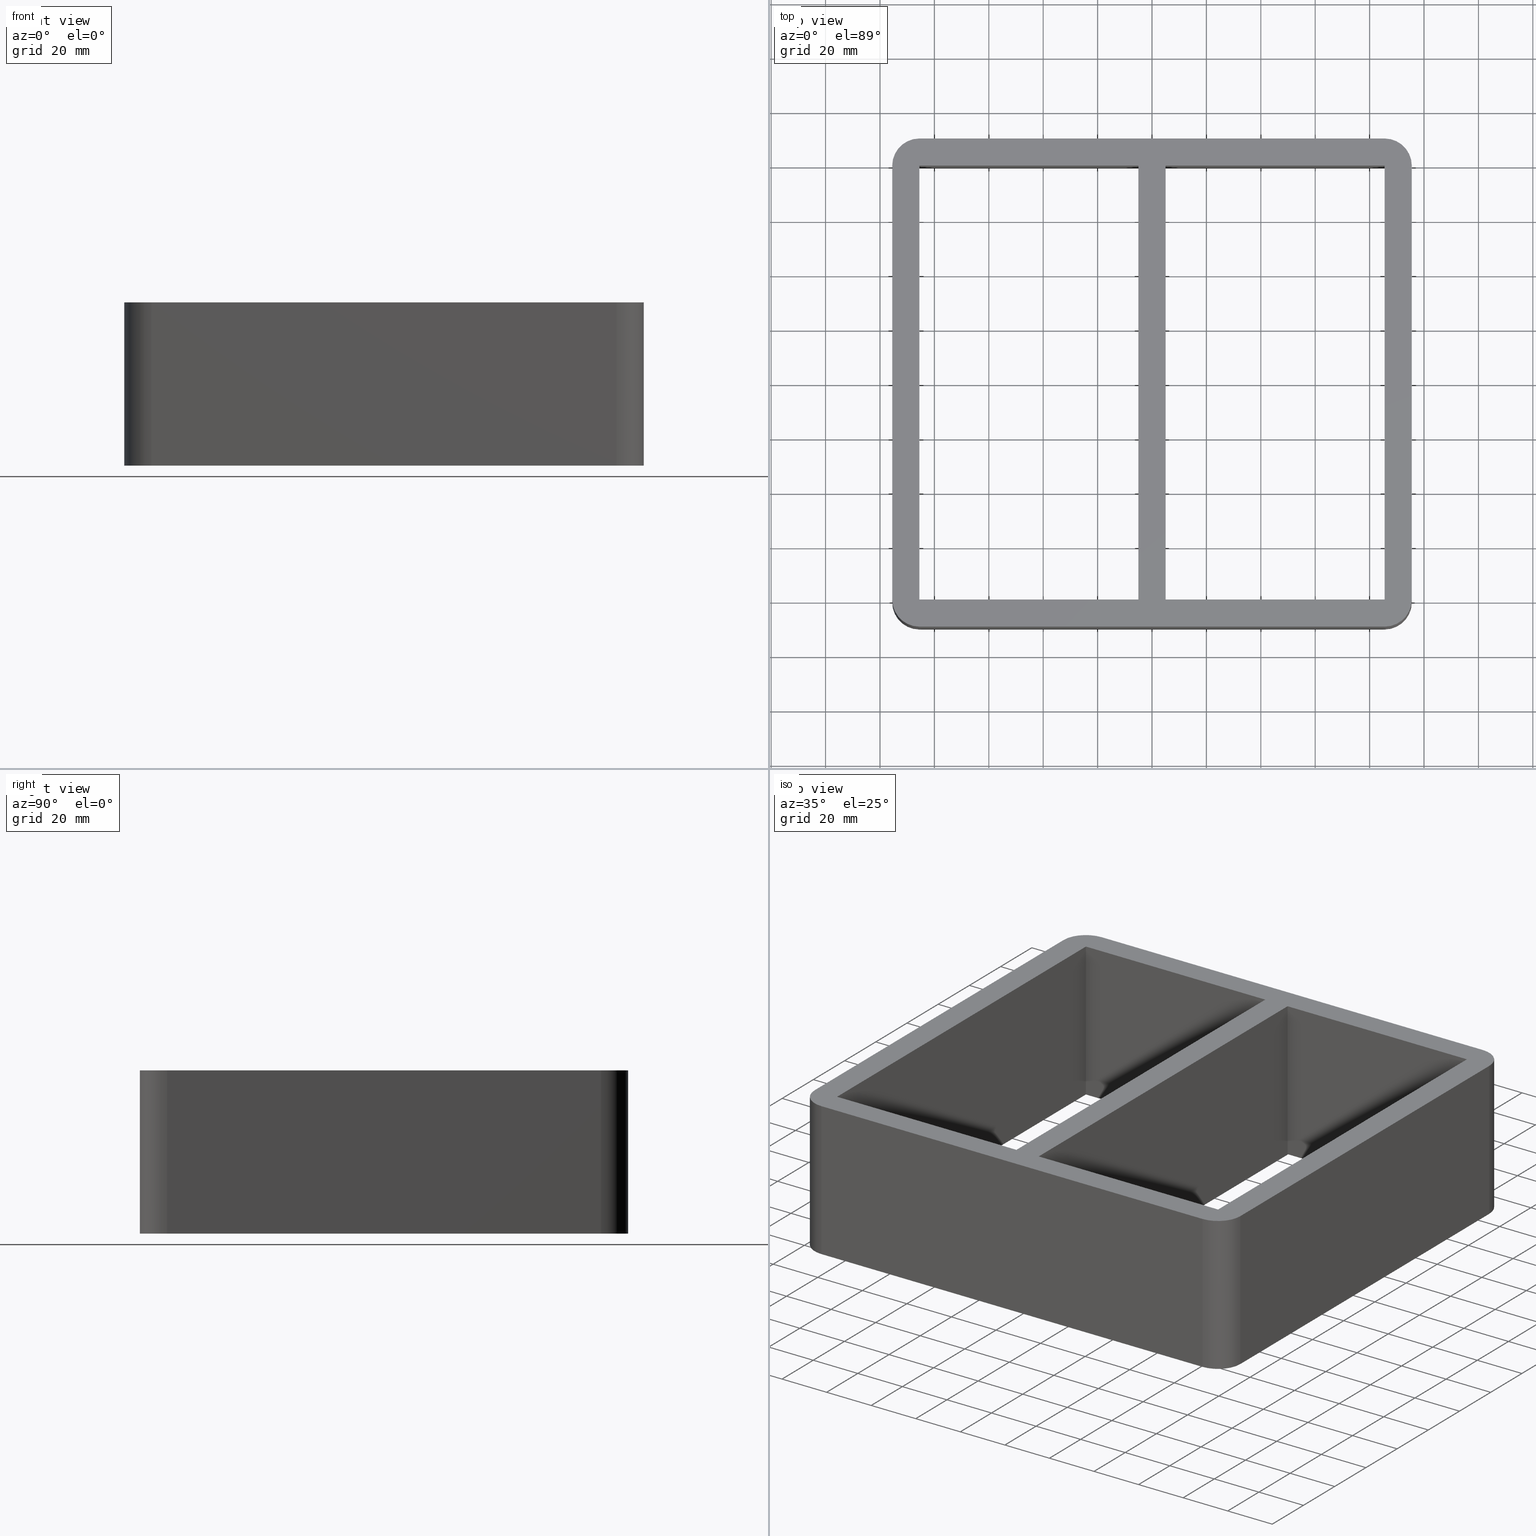
[diagram: canonical four-view strip — front | top / right | iso, engineering-drawing reading convention]
A machine part, canonical four-view strip (front | top / right | iso — engineering-drawing reading convention). The complete STEP part file that produces these views, byte-faithful:
ISO-10303-21;
HEADER;
/* Generated by software containing ST-Developer
 * from STEP Tools, Inc. (www.steptools.com) 
 */

FILE_DESCRIPTION(
/* description */ (''),
/* implementation_level */ '2;1');

FILE_NAME(
/* name */ 
'C:\\Users\\se-milkar\\OneDrive - Roxtec international AB\\Desktop\\S 
80\\Step\\S804X2.stp',
/* time_stamp */ '2024-09-03T15:06:05+02:00',
/* author */ ('ENTER YOUR USERNAME'),
/* organization */ (''),
/* preprocessor_version */ 'ST-DEVELOPER v18.1',
/* originating_system */ 'Autodesk Inventor 2021',
/* authorisation */ '');

FILE_SCHEMA (('AUTOMOTIVE_DESIGN { 1 0 10303 214 3 1 1 }'));
ENDSEC;

DATA;
#10=MECHANICAL_DESIGN_GEOMETRIC_PRESENTATION_REPRESENTATION('',(#13),#601);
#11=SHAPE_REPRESENTATION_RELATIONSHIP('SRR','None',#608,#12);
#12=ADVANCED_BREP_SHAPE_REPRESENTATION('',(#14),#600);
#13=STYLED_ITEM('',(#617),#14);
#14=MANIFOLD_SOLID_BREP('Solid1',#359);
#15=FACE_BOUND('',#60,.T.);
#16=FACE_BOUND('',#61,.T.);
#17=FACE_BOUND('',#69,.T.);
#18=FACE_BOUND('',#70,.T.);
#19=CIRCLE('',#388,10.);
#20=CIRCLE('',#389,10.);
#21=CIRCLE('',#392,10.);
#22=CIRCLE('',#393,10.);
#23=CIRCLE('',#394,10.);
#24=CIRCLE('',#396,10.);
#25=CIRCLE('',#399,10.);
#26=CIRCLE('',#402,10.);
#27=CYLINDRICAL_SURFACE('',#387,10.);
#28=CYLINDRICAL_SURFACE('',#395,10.);
#29=CYLINDRICAL_SURFACE('',#398,10.);
#30=CYLINDRICAL_SURFACE('',#401,10.);
#31=FACE_OUTER_BOUND('',#49,.T.);
#32=FACE_OUTER_BOUND('',#50,.T.);
#33=FACE_OUTER_BOUND('',#51,.T.);
#34=FACE_OUTER_BOUND('',#52,.T.);
#35=FACE_OUTER_BOUND('',#53,.T.);
#36=FACE_OUTER_BOUND('',#54,.T.);
#37=FACE_OUTER_BOUND('',#55,.T.);
#38=FACE_OUTER_BOUND('',#56,.T.);
#39=FACE_OUTER_BOUND('',#57,.T.);
#40=FACE_OUTER_BOUND('',#58,.T.);
#41=FACE_OUTER_BOUND('',#59,.T.);
#42=FACE_OUTER_BOUND('',#62,.T.);
#43=FACE_OUTER_BOUND('',#63,.T.);
#44=FACE_OUTER_BOUND('',#64,.T.);
#45=FACE_OUTER_BOUND('',#65,.T.);
#46=FACE_OUTER_BOUND('',#66,.T.);
#47=FACE_OUTER_BOUND('',#67,.T.);
#48=FACE_OUTER_BOUND('',#68,.T.);
#49=EDGE_LOOP('',(#231,#232,#233,#234));
#50=EDGE_LOOP('',(#235,#236,#237,#238));
#51=EDGE_LOOP('',(#239,#240,#241,#242));
#52=EDGE_LOOP('',(#243,#244,#245,#246));
#53=EDGE_LOOP('',(#247,#248,#249,#250));
#54=EDGE_LOOP('',(#251,#252,#253,#254));
#55=EDGE_LOOP('',(#255,#256,#257,#258));
#56=EDGE_LOOP('',(#259,#260,#261,#262));
#57=EDGE_LOOP('',(#263,#264,#265,#266));
#58=EDGE_LOOP('',(#267,#268,#269,#270));
#59=EDGE_LOOP('',(#271,#272,#273,#274,#275,#276,#277,#278));
#60=EDGE_LOOP('',(#279,#280,#281,#282));
#61=EDGE_LOOP('',(#283,#284,#285,#286));
#62=EDGE_LOOP('',(#287,#288,#289,#290));
#63=EDGE_LOOP('',(#291,#292,#293,#294));
#64=EDGE_LOOP('',(#295,#296,#297,#298));
#65=EDGE_LOOP('',(#299,#300,#301,#302));
#66=EDGE_LOOP('',(#303,#304,#305,#306));
#67=EDGE_LOOP('',(#307,#308,#309,#310));
#68=EDGE_LOOP('',(#311,#312,#313,#314,#315,#316,#317,#318));
#69=EDGE_LOOP('',(#319,#320,#321,#322));
#70=EDGE_LOOP('',(#323,#324,#325,#326));
#71=LINE('',#503,#111);
#72=LINE('',#505,#112);
#73=LINE('',#507,#113);
#74=LINE('',#508,#114);
#75=LINE('',#511,#115);
#76=LINE('',#513,#116);
#77=LINE('',#514,#117);
#78=LINE('',#517,#118);
#79=LINE('',#519,#119);
#80=LINE('',#520,#120);
#81=LINE('',#522,#121);
#82=LINE('',#523,#122);
#83=LINE('',#527,#123);
#84=LINE('',#529,#124);
#85=LINE('',#531,#125);
#86=LINE('',#532,#126);
#87=LINE('',#535,#127);
#88=LINE('',#537,#128);
#89=LINE('',#538,#129);
#90=LINE('',#541,#130);
#91=LINE('',#543,#131);
#92=LINE('',#544,#132);
#93=LINE('',#546,#133);
#94=LINE('',#547,#134);
#95=LINE('',#553,#135);
#96=LINE('',#556,#136);
#97=LINE('',#559,#137);
#98=LINE('',#561,#138);
#99=LINE('',#562,#139);
#100=LINE('',#565,#140);
#101=LINE('',#569,#141);
#102=LINE('',#573,#142);
#103=LINE('',#577,#143);
#104=LINE('',#581,#144);
#105=LINE('',#582,#145);
#106=LINE('',#585,#146);
#107=LINE('',#589,#147);
#108=LINE('',#590,#148);
#109=LINE('',#593,#149);
#110=LINE('',#596,#150);
#111=VECTOR('',#409,10.);
#112=VECTOR('',#410,10.);
#113=VECTOR('',#411,10.);
#114=VECTOR('',#412,10.);
#115=VECTOR('',#415,10.);
#116=VECTOR('',#416,10.);
#117=VECTOR('',#417,10.);
#118=VECTOR('',#420,10.);
#119=VECTOR('',#421,10.);
#120=VECTOR('',#422,10.);
#121=VECTOR('',#425,10.);
#122=VECTOR('',#426,10.);
#123=VECTOR('',#429,10.);
#124=VECTOR('',#430,10.);
#125=VECTOR('',#431,10.);
#126=VECTOR('',#432,10.);
#127=VECTOR('',#435,10.);
#128=VECTOR('',#436,10.);
#129=VECTOR('',#437,10.);
#130=VECTOR('',#440,10.);
#131=VECTOR('',#441,10.);
#132=VECTOR('',#442,10.);
#133=VECTOR('',#445,10.);
#134=VECTOR('',#446,10.);
#135=VECTOR('',#451,10.);
#136=VECTOR('',#454,10.);
#137=VECTOR('',#457,10.);
#138=VECTOR('',#458,10.);
#139=VECTOR('',#459,10.);
#140=VECTOR('',#462,10.);
#141=VECTOR('',#465,10.);
#142=VECTOR('',#468,10.);
#143=VECTOR('',#473,10.);
#144=VECTOR('',#478,10.);
#145=VECTOR('',#479,10.);
#146=VECTOR('',#482,10.);
#147=VECTOR('',#487,10.);
#148=VECTOR('',#488,10.);
#149=VECTOR('',#491,10.);
#150=VECTOR('',#496,10.);
#151=VERTEX_POINT('',#501);
#152=VERTEX_POINT('',#502);
#153=VERTEX_POINT('',#504);
#154=VERTEX_POINT('',#506);
#155=VERTEX_POINT('',#510);
#156=VERTEX_POINT('',#512);
#157=VERTEX_POINT('',#516);
#158=VERTEX_POINT('',#518);
#159=VERTEX_POINT('',#525);
#160=VERTEX_POINT('',#526);
#161=VERTEX_POINT('',#528);
#162=VERTEX_POINT('',#530);
#163=VERTEX_POINT('',#534);
#164=VERTEX_POINT('',#536);
#165=VERTEX_POINT('',#540);
#166=VERTEX_POINT('',#542);
#167=VERTEX_POINT('',#549);
#168=VERTEX_POINT('',#550);
#169=VERTEX_POINT('',#552);
#170=VERTEX_POINT('',#554);
#171=VERTEX_POINT('',#558);
#172=VERTEX_POINT('',#560);
#173=VERTEX_POINT('',#564);
#174=VERTEX_POINT('',#566);
#175=VERTEX_POINT('',#568);
#176=VERTEX_POINT('',#570);
#177=VERTEX_POINT('',#572);
#178=VERTEX_POINT('',#576);
#179=VERTEX_POINT('',#580);
#180=VERTEX_POINT('',#584);
#181=VERTEX_POINT('',#588);
#182=VERTEX_POINT('',#592);
#183=EDGE_CURVE('',#151,#152,#71,.T.);
#184=EDGE_CURVE('',#153,#151,#72,.T.);
#185=EDGE_CURVE('',#154,#153,#73,.T.);
#186=EDGE_CURVE('',#154,#152,#74,.T.);
#187=EDGE_CURVE('',#152,#155,#75,.T.);
#188=EDGE_CURVE('',#156,#154,#76,.T.);
#189=EDGE_CURVE('',#156,#155,#77,.T.);
#190=EDGE_CURVE('',#155,#157,#78,.T.);
#191=EDGE_CURVE('',#158,#156,#79,.T.);
#192=EDGE_CURVE('',#158,#157,#80,.T.);
#193=EDGE_CURVE('',#157,#151,#81,.T.);
#194=EDGE_CURVE('',#153,#158,#82,.T.);
#195=EDGE_CURVE('',#159,#160,#83,.T.);
#196=EDGE_CURVE('',#161,#159,#84,.T.);
#197=EDGE_CURVE('',#162,#161,#85,.T.);
#198=EDGE_CURVE('',#162,#160,#86,.T.);
#199=EDGE_CURVE('',#160,#163,#87,.T.);
#200=EDGE_CURVE('',#164,#162,#88,.T.);
#201=EDGE_CURVE('',#164,#163,#89,.T.);
#202=EDGE_CURVE('',#163,#165,#90,.T.);
#203=EDGE_CURVE('',#166,#164,#91,.T.);
#204=EDGE_CURVE('',#166,#165,#92,.T.);
#205=EDGE_CURVE('',#165,#159,#93,.T.);
#206=EDGE_CURVE('',#161,#166,#94,.T.);
#207=EDGE_CURVE('',#167,#168,#19,.T.);
#208=EDGE_CURVE('',#168,#169,#95,.T.);
#209=EDGE_CURVE('',#169,#170,#20,.T.);
#210=EDGE_CURVE('',#170,#167,#96,.T.);
#211=EDGE_CURVE('',#171,#168,#97,.T.);
#212=EDGE_CURVE('',#172,#171,#98,.T.);
#213=EDGE_CURVE('',#169,#172,#99,.T.);
#214=EDGE_CURVE('',#167,#173,#100,.T.);
#215=EDGE_CURVE('',#174,#173,#21,.T.);
#216=EDGE_CURVE('',#174,#175,#101,.T.);
#217=EDGE_CURVE('',#176,#175,#22,.T.);
#218=EDGE_CURVE('',#176,#177,#102,.T.);
#219=EDGE_CURVE('',#171,#177,#23,.T.);
#220=EDGE_CURVE('',#177,#178,#103,.T.);
#221=EDGE_CURVE('',#178,#172,#24,.T.);
#222=EDGE_CURVE('',#179,#176,#104,.T.);
#223=EDGE_CURVE('',#178,#179,#105,.T.);
#224=EDGE_CURVE('',#175,#180,#106,.T.);
#225=EDGE_CURVE('',#180,#179,#25,.T.);
#226=EDGE_CURVE('',#181,#174,#107,.T.);
#227=EDGE_CURVE('',#180,#181,#108,.T.);
#228=EDGE_CURVE('',#173,#182,#109,.T.);
#229=EDGE_CURVE('',#182,#181,#26,.T.);
#230=EDGE_CURVE('',#182,#170,#110,.T.);
#231=ORIENTED_EDGE('',*,*,#183,.F.);
#232=ORIENTED_EDGE('',*,*,#184,.F.);
#233=ORIENTED_EDGE('',*,*,#185,.F.);
#234=ORIENTED_EDGE('',*,*,#186,.T.);
#235=ORIENTED_EDGE('',*,*,#187,.F.);
#236=ORIENTED_EDGE('',*,*,#186,.F.);
#237=ORIENTED_EDGE('',*,*,#188,.F.);
#238=ORIENTED_EDGE('',*,*,#189,.T.);
#239=ORIENTED_EDGE('',*,*,#190,.F.);
#240=ORIENTED_EDGE('',*,*,#189,.F.);
#241=ORIENTED_EDGE('',*,*,#191,.F.);
#242=ORIENTED_EDGE('',*,*,#192,.T.);
#243=ORIENTED_EDGE('',*,*,#193,.F.);
#244=ORIENTED_EDGE('',*,*,#192,.F.);
#245=ORIENTED_EDGE('',*,*,#194,.F.);
#246=ORIENTED_EDGE('',*,*,#184,.T.);
#247=ORIENTED_EDGE('',*,*,#195,.F.);
#248=ORIENTED_EDGE('',*,*,#196,.F.);
#249=ORIENTED_EDGE('',*,*,#197,.F.);
#250=ORIENTED_EDGE('',*,*,#198,.T.);
#251=ORIENTED_EDGE('',*,*,#199,.F.);
#252=ORIENTED_EDGE('',*,*,#198,.F.);
#253=ORIENTED_EDGE('',*,*,#200,.F.);
#254=ORIENTED_EDGE('',*,*,#201,.T.);
#255=ORIENTED_EDGE('',*,*,#202,.F.);
#256=ORIENTED_EDGE('',*,*,#201,.F.);
#257=ORIENTED_EDGE('',*,*,#203,.F.);
#258=ORIENTED_EDGE('',*,*,#204,.T.);
#259=ORIENTED_EDGE('',*,*,#205,.F.);
#260=ORIENTED_EDGE('',*,*,#204,.F.);
#261=ORIENTED_EDGE('',*,*,#206,.F.);
#262=ORIENTED_EDGE('',*,*,#196,.T.);
#263=ORIENTED_EDGE('',*,*,#207,.T.);
#264=ORIENTED_EDGE('',*,*,#208,.T.);
#265=ORIENTED_EDGE('',*,*,#209,.T.);
#266=ORIENTED_EDGE('',*,*,#210,.T.);
#267=ORIENTED_EDGE('',*,*,#208,.F.);
#268=ORIENTED_EDGE('',*,*,#211,.F.);
#269=ORIENTED_EDGE('',*,*,#212,.F.);
#270=ORIENTED_EDGE('',*,*,#213,.F.);
#271=ORIENTED_EDGE('',*,*,#207,.F.);
#272=ORIENTED_EDGE('',*,*,#214,.T.);
#273=ORIENTED_EDGE('',*,*,#215,.F.);
#274=ORIENTED_EDGE('',*,*,#216,.T.);
#275=ORIENTED_EDGE('',*,*,#217,.F.);
#276=ORIENTED_EDGE('',*,*,#218,.T.);
#277=ORIENTED_EDGE('',*,*,#219,.F.);
#278=ORIENTED_EDGE('',*,*,#211,.T.);
#279=ORIENTED_EDGE('',*,*,#183,.T.);
#280=ORIENTED_EDGE('',*,*,#187,.T.);
#281=ORIENTED_EDGE('',*,*,#190,.T.);
#282=ORIENTED_EDGE('',*,*,#193,.T.);
#283=ORIENTED_EDGE('',*,*,#202,.T.);
#284=ORIENTED_EDGE('',*,*,#205,.T.);
#285=ORIENTED_EDGE('',*,*,#195,.T.);
#286=ORIENTED_EDGE('',*,*,#199,.T.);
#287=ORIENTED_EDGE('',*,*,#219,.T.);
#288=ORIENTED_EDGE('',*,*,#220,.T.);
#289=ORIENTED_EDGE('',*,*,#221,.T.);
#290=ORIENTED_EDGE('',*,*,#212,.T.);
#291=ORIENTED_EDGE('',*,*,#220,.F.);
#292=ORIENTED_EDGE('',*,*,#218,.F.);
#293=ORIENTED_EDGE('',*,*,#222,.F.);
#294=ORIENTED_EDGE('',*,*,#223,.F.);
#295=ORIENTED_EDGE('',*,*,#217,.T.);
#296=ORIENTED_EDGE('',*,*,#224,.T.);
#297=ORIENTED_EDGE('',*,*,#225,.T.);
#298=ORIENTED_EDGE('',*,*,#222,.T.);
#299=ORIENTED_EDGE('',*,*,#224,.F.);
#300=ORIENTED_EDGE('',*,*,#216,.F.);
#301=ORIENTED_EDGE('',*,*,#226,.F.);
#302=ORIENTED_EDGE('',*,*,#227,.F.);
#303=ORIENTED_EDGE('',*,*,#215,.T.);
#304=ORIENTED_EDGE('',*,*,#228,.T.);
#305=ORIENTED_EDGE('',*,*,#229,.T.);
#306=ORIENTED_EDGE('',*,*,#226,.T.);
#307=ORIENTED_EDGE('',*,*,#210,.F.);
#308=ORIENTED_EDGE('',*,*,#230,.F.);
#309=ORIENTED_EDGE('',*,*,#228,.F.);
#310=ORIENTED_EDGE('',*,*,#214,.F.);
#311=ORIENTED_EDGE('',*,*,#209,.F.);
#312=ORIENTED_EDGE('',*,*,#213,.T.);
#313=ORIENTED_EDGE('',*,*,#221,.F.);
#314=ORIENTED_EDGE('',*,*,#223,.T.);
#315=ORIENTED_EDGE('',*,*,#225,.F.);
#316=ORIENTED_EDGE('',*,*,#227,.T.);
#317=ORIENTED_EDGE('',*,*,#229,.F.);
#318=ORIENTED_EDGE('',*,*,#230,.T.);
#319=ORIENTED_EDGE('',*,*,#185,.T.);
#320=ORIENTED_EDGE('',*,*,#194,.T.);
#321=ORIENTED_EDGE('',*,*,#191,.T.);
#322=ORIENTED_EDGE('',*,*,#188,.T.);
#323=ORIENTED_EDGE('',*,*,#203,.T.);
#324=ORIENTED_EDGE('',*,*,#200,.T.);
#325=ORIENTED_EDGE('',*,*,#197,.T.);
#326=ORIENTED_EDGE('',*,*,#206,.T.);
#327=PLANE('',#379);
#328=PLANE('',#380);
#329=PLANE('',#381);
#330=PLANE('',#382);
#331=PLANE('',#383);
#332=PLANE('',#384);
#333=PLANE('',#385);
#334=PLANE('',#386);
#335=PLANE('',#390);
#336=PLANE('',#391);
#337=PLANE('',#397);
#338=PLANE('',#400);
#339=PLANE('',#403);
#340=PLANE('',#404);
#341=ADVANCED_FACE('',(#31),#327,.F.);
#342=ADVANCED_FACE('',(#32),#328,.F.);
#343=ADVANCED_FACE('',(#33),#329,.F.);
#344=ADVANCED_FACE('',(#34),#330,.F.);
#345=ADVANCED_FACE('',(#35),#331,.F.);
#346=ADVANCED_FACE('',(#36),#332,.F.);
#347=ADVANCED_FACE('',(#37),#333,.F.);
#348=ADVANCED_FACE('',(#38),#334,.F.);
#349=ADVANCED_FACE('',(#39),#27,.T.);
#350=ADVANCED_FACE('',(#40),#335,.T.);
#351=ADVANCED_FACE('',(#41,#15,#16),#336,.T.);
#352=ADVANCED_FACE('',(#42),#28,.T.);
#353=ADVANCED_FACE('',(#43),#337,.T.);
#354=ADVANCED_FACE('',(#44),#29,.T.);
#355=ADVANCED_FACE('',(#45),#338,.T.);
#356=ADVANCED_FACE('',(#46),#30,.T.);
#357=ADVANCED_FACE('',(#47),#339,.T.);
#358=ADVANCED_FACE('',(#48,#17,#18),#340,.T.);
#359=CLOSED_SHELL('',(#341,#342,#343,#344,#345,#346,#347,#348,#349,#350,
#351,#352,#353,#354,#355,#356,#357,#358));
#360=DERIVED_UNIT_ELEMENT(#362,1.);
#361=DERIVED_UNIT_ELEMENT(#603,-3.);
#362=(
MASS_UNIT()
NAMED_UNIT(*)
SI_UNIT($,.GRAM.)
);
#363=DERIVED_UNIT((#360,#361));
#364=MEASURE_REPRESENTATION_ITEM('density measure',
POSITIVE_RATIO_MEASURE(1.),#363);
#365=PROPERTY_DEFINITION_REPRESENTATION(#370,#367);
#366=PROPERTY_DEFINITION_REPRESENTATION(#371,#368);
#367=REPRESENTATION('material name',(#369),#600);
#368=REPRESENTATION('density',(#364),#600);
#369=DESCRIPTIVE_REPRESENTATION_ITEM('Generic','Generic');
#370=PROPERTY_DEFINITION('material property','material name',#610);
#371=PROPERTY_DEFINITION('material property','density of part',#610);
#372=DATE_TIME_ROLE('creation_date');
#373=APPLIED_DATE_AND_TIME_ASSIGNMENT(#374,#372,(#610));
#374=DATE_AND_TIME(#375,#376);
#375=CALENDAR_DATE(2022,17,2);
#376=LOCAL_TIME(0,0,0.,#377);
#377=COORDINATED_UNIVERSAL_TIME_OFFSET(0,0,.BEHIND.);
#378=AXIS2_PLACEMENT_3D('placement',#499,#405,#406);
#379=AXIS2_PLACEMENT_3D('',#500,#407,#408);
#380=AXIS2_PLACEMENT_3D('',#509,#413,#414);
#381=AXIS2_PLACEMENT_3D('',#515,#418,#419);
#382=AXIS2_PLACEMENT_3D('',#521,#423,#424);
#383=AXIS2_PLACEMENT_3D('',#524,#427,#428);
#384=AXIS2_PLACEMENT_3D('',#533,#433,#434);
#385=AXIS2_PLACEMENT_3D('',#539,#438,#439);
#386=AXIS2_PLACEMENT_3D('',#545,#443,#444);
#387=AXIS2_PLACEMENT_3D('',#548,#447,#448);
#388=AXIS2_PLACEMENT_3D('',#551,#449,#450);
#389=AXIS2_PLACEMENT_3D('',#555,#452,#453);
#390=AXIS2_PLACEMENT_3D('',#557,#455,#456);
#391=AXIS2_PLACEMENT_3D('',#563,#460,#461);
#392=AXIS2_PLACEMENT_3D('',#567,#463,#464);
#393=AXIS2_PLACEMENT_3D('',#571,#466,#467);
#394=AXIS2_PLACEMENT_3D('',#574,#469,#470);
#395=AXIS2_PLACEMENT_3D('',#575,#471,#472);
#396=AXIS2_PLACEMENT_3D('',#578,#474,#475);
#397=AXIS2_PLACEMENT_3D('',#579,#476,#477);
#398=AXIS2_PLACEMENT_3D('',#583,#480,#481);
#399=AXIS2_PLACEMENT_3D('',#586,#483,#484);
#400=AXIS2_PLACEMENT_3D('',#587,#485,#486);
#401=AXIS2_PLACEMENT_3D('',#591,#489,#490);
#402=AXIS2_PLACEMENT_3D('',#594,#492,#493);
#403=AXIS2_PLACEMENT_3D('',#595,#494,#495);
#404=AXIS2_PLACEMENT_3D('',#597,#497,#498);
#405=DIRECTION('axis',(0.,0.,1.));
#406=DIRECTION('refdir',(1.,0.,0.));
#407=DIRECTION('center_axis',(1.,5.56851673793182E-17,0.));
#408=DIRECTION('ref_axis',(5.56851673793182E-17,-1.,0.));
#409=DIRECTION('',(-5.56851673793182E-17,1.,0.));
#410=DIRECTION('',(0.,0.,-1.));
#411=DIRECTION('',(5.56851673793182E-17,-1.,0.));
#412=DIRECTION('',(0.,0.,-1.));
#413=DIRECTION('center_axis',(0.,1.,0.));
#414=DIRECTION('ref_axis',(1.,0.,0.));
#415=DIRECTION('',(-1.,0.,0.));
#416=DIRECTION('',(1.,0.,0.));
#417=DIRECTION('',(0.,0.,-1.));
#418=DIRECTION('center_axis',(-1.,1.35871808405536E-14,0.));
#419=DIRECTION('ref_axis',(1.35871808405536E-14,1.,0.));
#420=DIRECTION('',(-1.35871808405536E-14,-1.,0.));
#421=DIRECTION('',(1.35871808405536E-14,1.,0.));
#422=DIRECTION('',(0.,0.,-1.));
#423=DIRECTION('center_axis',(0.,-1.,0.));
#424=DIRECTION('ref_axis',(-1.,0.,0.));
#425=DIRECTION('',(1.,0.,0.));
#426=DIRECTION('',(-1.,0.,0.));
#427=DIRECTION('center_axis',(1.,5.56851673793182E-17,0.));
#428=DIRECTION('ref_axis',(5.56851673793182E-17,-1.,0.));
#429=DIRECTION('',(-5.56851673793182E-17,1.,0.));
#430=DIRECTION('',(0.,0.,-1.));
#431=DIRECTION('',(5.56851673793182E-17,-1.,0.));
#432=DIRECTION('',(0.,0.,-1.));
#433=DIRECTION('center_axis',(0.,1.,0.));
#434=DIRECTION('ref_axis',(1.,0.,0.));
#435=DIRECTION('',(-1.,0.,0.));
#436=DIRECTION('',(1.,0.,0.));
#437=DIRECTION('',(0.,0.,-1.));
#438=DIRECTION('center_axis',(-1.,1.35871808405536E-14,0.));
#439=DIRECTION('ref_axis',(1.35871808405536E-14,1.,0.));
#440=DIRECTION('',(-1.35871808405536E-14,-1.,0.));
#441=DIRECTION('',(1.35871808405536E-14,1.,0.));
#442=DIRECTION('',(0.,0.,-1.));
#443=DIRECTION('center_axis',(0.,-1.,0.));
#444=DIRECTION('ref_axis',(-1.,0.,0.));
#445=DIRECTION('',(1.,0.,0.));
#446=DIRECTION('',(-1.,0.,0.));
#447=DIRECTION('center_axis',(0.,0.,-1.));
#448=DIRECTION('ref_axis',(0.707106781186547,0.707106781186547,0.));
#449=DIRECTION('center_axis',(0.,0.,1.));
#450=DIRECTION('ref_axis',(0.707106781186547,0.707106781186547,0.));
#451=DIRECTION('',(0.,0.,1.));
#452=DIRECTION('center_axis',(0.,0.,-1.));
#453=DIRECTION('ref_axis',(0.707106781186547,0.707106781186547,0.));
#454=DIRECTION('',(0.,0.,-1.));
#455=DIRECTION('center_axis',(0.,1.,0.));
#456=DIRECTION('ref_axis',(1.,0.,0.));
#457=DIRECTION('',(1.,0.,0.));
#458=DIRECTION('',(0.,0.,-1.));
#459=DIRECTION('',(-1.,0.,0.));
#460=DIRECTION('center_axis',(0.,0.,-1.));
#461=DIRECTION('ref_axis',(-1.,0.,0.));
#462=DIRECTION('',(0.,-1.,0.));
#463=DIRECTION('center_axis',(0.,0.,1.));
#464=DIRECTION('ref_axis',(0.707106781186547,-0.707106781186547,0.));
#465=DIRECTION('',(-1.,0.,0.));
#466=DIRECTION('center_axis',(0.,0.,1.));
#467=DIRECTION('ref_axis',(-0.707106781186547,-0.707106781186547,0.));
#468=DIRECTION('',(0.,1.,0.));
#469=DIRECTION('center_axis',(0.,0.,1.));
#470=DIRECTION('ref_axis',(-0.707106781186547,0.707106781186547,0.));
#471=DIRECTION('center_axis',(0.,0.,-1.));
#472=DIRECTION('ref_axis',(-0.707106781186547,0.707106781186547,0.));
#473=DIRECTION('',(0.,0.,1.));
#474=DIRECTION('center_axis',(0.,0.,-1.));
#475=DIRECTION('ref_axis',(-0.707106781186547,0.707106781186547,0.));
#476=DIRECTION('center_axis',(-1.,0.,0.));
#477=DIRECTION('ref_axis',(0.,1.,0.));
#478=DIRECTION('',(0.,0.,-1.));
#479=DIRECTION('',(0.,-1.,0.));
#480=DIRECTION('center_axis',(0.,0.,-1.));
#481=DIRECTION('ref_axis',(-0.707106781186547,-0.707106781186547,0.));
#482=DIRECTION('',(0.,0.,1.));
#483=DIRECTION('center_axis',(0.,0.,-1.));
#484=DIRECTION('ref_axis',(-0.707106781186547,-0.707106781186547,0.));
#485=DIRECTION('center_axis',(0.,-1.,0.));
#486=DIRECTION('ref_axis',(-1.,0.,0.));
#487=DIRECTION('',(0.,0.,-1.));
#488=DIRECTION('',(1.,0.,0.));
#489=DIRECTION('center_axis',(0.,0.,-1.));
#490=DIRECTION('ref_axis',(0.707106781186547,-0.707106781186547,0.));
#491=DIRECTION('',(0.,0.,1.));
#492=DIRECTION('center_axis',(0.,0.,-1.));
#493=DIRECTION('ref_axis',(0.707106781186547,-0.707106781186547,0.));
#494=DIRECTION('center_axis',(1.,0.,0.));
#495=DIRECTION('ref_axis',(0.,-1.,0.));
#496=DIRECTION('',(0.,1.,0.));
#497=DIRECTION('center_axis',(0.,0.,1.));
#498=DIRECTION('ref_axis',(1.,0.,0.));
#499=CARTESIAN_POINT('',(0.,0.,0.));
#500=CARTESIAN_POINT('Origin',(85.4999999999982,79.7499999999907,0.));
#501=CARTESIAN_POINT('',(85.4999999999982,-79.7500000000093,-60.));
#502=CARTESIAN_POINT('',(85.4999999999982,79.7499999999907,-60.));
#503=CARTESIAN_POINT('',(85.4999999999982,39.8749999999953,-60.));
#504=CARTESIAN_POINT('',(85.4999999999982,-79.7500000000093,0.));
#505=CARTESIAN_POINT('',(85.4999999999982,-79.7500000000093,0.));
#506=CARTESIAN_POINT('',(85.4999999999982,79.7499999999907,0.));
#507=CARTESIAN_POINT('',(85.4999999999982,39.8749999999953,0.));
#508=CARTESIAN_POINT('',(85.4999999999982,79.7499999999907,0.));
#509=CARTESIAN_POINT('Origin',(5.00000000000036,79.7499999999907,0.));
#510=CARTESIAN_POINT('',(5.00000000000036,79.7499999999907,-60.));
#511=CARTESIAN_POINT('',(2.50000000000025,79.7499999999907,-60.));
#512=CARTESIAN_POINT('',(5.00000000000036,79.7499999999907,0.));
#513=CARTESIAN_POINT('',(2.50000000000025,79.7499999999907,0.));
#514=CARTESIAN_POINT('',(5.00000000000036,79.7499999999907,0.));
#515=CARTESIAN_POINT('Origin',(4.99999999999819,-79.7500000000093,0.));
#516=CARTESIAN_POINT('',(4.99999999999819,-79.7500000000093,-60.));
#517=CARTESIAN_POINT('',(4.99999999999873,-39.8750000000047,-60.));
#518=CARTESIAN_POINT('',(4.99999999999819,-79.7500000000093,0.));
#519=CARTESIAN_POINT('',(4.99999999999873,-39.8750000000047,0.));
#520=CARTESIAN_POINT('',(4.99999999999819,-79.7500000000093,0.));
#521=CARTESIAN_POINT('Origin',(85.4999999999982,-79.7500000000093,0.));
#522=CARTESIAN_POINT('',(42.7499999999992,-79.7500000000093,-60.));
#523=CARTESIAN_POINT('',(42.7499999999992,-79.7500000000093,0.));
#524=CARTESIAN_POINT('Origin',(-5.00000000000182,79.7499999999907,0.));
#525=CARTESIAN_POINT('',(-5.00000000000181,-79.7500000000093,-60.));
#526=CARTESIAN_POINT('',(-5.00000000000182,79.7499999999907,-60.));
#527=CARTESIAN_POINT('',(-5.00000000000182,39.8749999999953,-60.));
#528=CARTESIAN_POINT('',(-5.00000000000181,-79.7500000000093,0.));
#529=CARTESIAN_POINT('',(-5.00000000000181,-79.7500000000093,0.));
#530=CARTESIAN_POINT('',(-5.00000000000182,79.7499999999907,0.));
#531=CARTESIAN_POINT('',(-5.00000000000182,39.8749999999953,0.));
#532=CARTESIAN_POINT('',(-5.00000000000182,79.7499999999907,0.));
#533=CARTESIAN_POINT('Origin',(-85.4999999999997,79.7499999999907,0.));
#534=CARTESIAN_POINT('',(-85.4999999999997,79.7499999999907,-60.));
#535=CARTESIAN_POINT('',(-42.7499999999998,79.7499999999907,-60.));
#536=CARTESIAN_POINT('',(-85.4999999999997,79.7499999999907,0.));
#537=CARTESIAN_POINT('',(-42.7499999999998,79.7499999999907,0.));
#538=CARTESIAN_POINT('',(-85.4999999999997,79.7499999999907,0.));
#539=CARTESIAN_POINT('Origin',(-85.5000000000018,-79.7500000000093,0.));
#540=CARTESIAN_POINT('',(-85.5000000000018,-79.7500000000093,-60.));
#541=CARTESIAN_POINT('',(-85.5000000000013,-39.8750000000041,-60.));
#542=CARTESIAN_POINT('',(-85.5000000000018,-79.7500000000093,0.));
#543=CARTESIAN_POINT('',(-85.5000000000013,-39.8750000000041,0.));
#544=CARTESIAN_POINT('',(-85.5000000000018,-79.7500000000093,0.));
#545=CARTESIAN_POINT('Origin',(-5.00000000000181,-79.7500000000093,0.));
#546=CARTESIAN_POINT('',(-2.50000000000083,-79.7500000000093,-60.));
#547=CARTESIAN_POINT('',(-2.50000000000083,-79.7500000000093,0.));
#548=CARTESIAN_POINT('Origin',(85.5000000000001,79.7499999999999,0.));
#549=CARTESIAN_POINT('',(95.5000000000001,79.7499999999999,-60.));
#550=CARTESIAN_POINT('',(85.5000000000001,89.7499999999999,-60.));
#551=CARTESIAN_POINT('Origin',(85.5000000000001,79.7499999999999,-60.));
#552=CARTESIAN_POINT('',(85.5000000000001,89.7499999999999,0.));
#553=CARTESIAN_POINT('',(85.5000000000001,89.7499999999999,0.));
#554=CARTESIAN_POINT('',(95.5000000000001,79.7499999999999,0.));
#555=CARTESIAN_POINT('Origin',(85.5000000000001,79.7499999999999,0.));
#556=CARTESIAN_POINT('',(95.5000000000001,79.7499999999999,0.));
#557=CARTESIAN_POINT('Origin',(-95.4999999999998,89.7499999999999,0.));
#558=CARTESIAN_POINT('',(-85.4999999999998,89.7499999999999,-60.));
#559=CARTESIAN_POINT('',(95.5000000000001,89.7499999999999,-60.));
#560=CARTESIAN_POINT('',(-85.4999999999998,89.7499999999999,0.));
#561=CARTESIAN_POINT('',(-85.4999999999998,89.7499999999999,0.));
#562=CARTESIAN_POINT('',(95.5000000000001,89.7499999999999,0.));
#563=CARTESIAN_POINT('Origin',(1.4210854715202E-13,-7.105427357601E-14,
-60.));
#564=CARTESIAN_POINT('',(95.5000000000001,-79.7500000000001,-60.));
#565=CARTESIAN_POINT('',(95.5000000000001,-89.7500000000001,-60.));
#566=CARTESIAN_POINT('',(85.5000000000001,-89.7500000000001,-60.));
#567=CARTESIAN_POINT('Origin',(85.5000000000001,-79.7500000000001,-60.));
#568=CARTESIAN_POINT('',(-85.4999999999998,-89.7500000000001,-60.));
#569=CARTESIAN_POINT('',(-95.4999999999998,-89.7500000000001,-60.));
#570=CARTESIAN_POINT('',(-95.4999999999998,-79.7500000000001,-60.));
#571=CARTESIAN_POINT('Origin',(-85.4999999999998,-79.7500000000001,-60.));
#572=CARTESIAN_POINT('',(-95.4999999999998,79.7499999999999,-60.));
#573=CARTESIAN_POINT('',(-95.4999999999998,89.7499999999999,-60.));
#574=CARTESIAN_POINT('Origin',(-85.4999999999998,79.7499999999999,-60.));
#575=CARTESIAN_POINT('Origin',(-85.4999999999998,79.7499999999999,0.));
#576=CARTESIAN_POINT('',(-95.4999999999998,79.7499999999999,0.));
#577=CARTESIAN_POINT('',(-95.4999999999998,79.7499999999999,0.));
#578=CARTESIAN_POINT('Origin',(-85.4999999999998,79.7499999999999,0.));
#579=CARTESIAN_POINT('Origin',(-95.4999999999998,-89.7500000000001,0.));
#580=CARTESIAN_POINT('',(-95.4999999999998,-79.7500000000001,0.));
#581=CARTESIAN_POINT('',(-95.4999999999998,-79.7500000000001,0.));
#582=CARTESIAN_POINT('',(-95.4999999999998,89.7499999999999,0.));
#583=CARTESIAN_POINT('Origin',(-85.4999999999998,-79.7500000000001,0.));
#584=CARTESIAN_POINT('',(-85.4999999999998,-89.7500000000001,0.));
#585=CARTESIAN_POINT('',(-85.4999999999998,-89.7500000000001,0.));
#586=CARTESIAN_POINT('Origin',(-85.4999999999998,-79.7500000000001,0.));
#587=CARTESIAN_POINT('Origin',(95.5000000000001,-89.7500000000001,0.));
#588=CARTESIAN_POINT('',(85.5000000000001,-89.7500000000001,0.));
#589=CARTESIAN_POINT('',(85.5000000000001,-89.7500000000001,0.));
#590=CARTESIAN_POINT('',(-95.4999999999998,-89.7500000000001,0.));
#591=CARTESIAN_POINT('Origin',(85.5000000000001,-79.7500000000001,0.));
#592=CARTESIAN_POINT('',(95.5000000000001,-79.7500000000001,0.));
#593=CARTESIAN_POINT('',(95.5000000000001,-79.7500000000001,0.));
#594=CARTESIAN_POINT('Origin',(85.5000000000001,-79.7500000000001,0.));
#595=CARTESIAN_POINT('Origin',(95.5000000000001,89.7499999999999,0.));
#596=CARTESIAN_POINT('',(95.5000000000001,-89.7500000000001,0.));
#597=CARTESIAN_POINT('Origin',(1.43834561894757E-13,-6.89926448555185E-14,
0.));
#598=UNCERTAINTY_MEASURE_WITH_UNIT(LENGTH_MEASURE(0.01),#602,
'DISTANCE_ACCURACY_VALUE',
'Maximum model space distance between geometric entities at asserted c
onnectivities');
#599=UNCERTAINTY_MEASURE_WITH_UNIT(LENGTH_MEASURE(0.01),#602,
'DISTANCE_ACCURACY_VALUE',
'Maximum model space distance between geometric entities at asserted c
onnectivities');
#600=(
GEOMETRIC_REPRESENTATION_CONTEXT(3)
GLOBAL_UNCERTAINTY_ASSIGNED_CONTEXT((#598))
GLOBAL_UNIT_ASSIGNED_CONTEXT((#602,#604,#605))
REPRESENTATION_CONTEXT('','3D')
);
#601=(
GEOMETRIC_REPRESENTATION_CONTEXT(3)
GLOBAL_UNCERTAINTY_ASSIGNED_CONTEXT((#599))
GLOBAL_UNIT_ASSIGNED_CONTEXT((#602,#604,#605))
REPRESENTATION_CONTEXT('','3D')
);
#602=(
LENGTH_UNIT()
NAMED_UNIT(*)
SI_UNIT(.MILLI.,.METRE.)
);
#603=(
LENGTH_UNIT()
NAMED_UNIT(*)
SI_UNIT(.CENTI.,.METRE.)
);
#604=(
NAMED_UNIT(*)
PLANE_ANGLE_UNIT()
SI_UNIT($,.RADIAN.)
);
#605=(
NAMED_UNIT(*)
SI_UNIT($,.STERADIAN.)
SOLID_ANGLE_UNIT()
);
#606=SHAPE_DEFINITION_REPRESENTATION(#607,#608);
#607=PRODUCT_DEFINITION_SHAPE('',$,#610);
#608=SHAPE_REPRESENTATION('',(#378),#600);
#609=PRODUCT_DEFINITION_CONTEXT('part definition',#614,'design');
#610=PRODUCT_DEFINITION('S804X2','S Frame T10 80_Wide_Small range',#611,
#609);
#611=PRODUCT_DEFINITION_FORMATION('',$,#616);
#612=PRODUCT_RELATED_PRODUCT_CATEGORY('S Frame T10 80_Wide_Small range',
'S Frame T10 80_Wide_Small range',(#616));
#613=APPLICATION_PROTOCOL_DEFINITION('international standard',
'automotive_design',2009,#614);
#614=APPLICATION_CONTEXT(
'Core Data for Automotive Mechanical Design Process');
#615=PRODUCT_CONTEXT('part definition',#614,'mechanical');
#616=PRODUCT('S804X2','S Frame T10 80_Wide_Small range',$,(#615));
#617=PRESENTATION_STYLE_ASSIGNMENT((#618));
#618=SURFACE_STYLE_USAGE(.BOTH.,#621);
#619=SURFACE_STYLE_RENDERING_WITH_PROPERTIES($,#625,(#620));
#620=SURFACE_STYLE_TRANSPARENT(0.);
#621=SURFACE_SIDE_STYLE('',(#622,#619));
#622=SURFACE_STYLE_FILL_AREA(#623);
#623=FILL_AREA_STYLE('',(#624));
#624=FILL_AREA_STYLE_COLOUR('',#625);
#625=COLOUR_RGB('',0.749019607843137,0.749019607843137,0.749019607843137);
ENDSEC;
END-ISO-10303-21;
